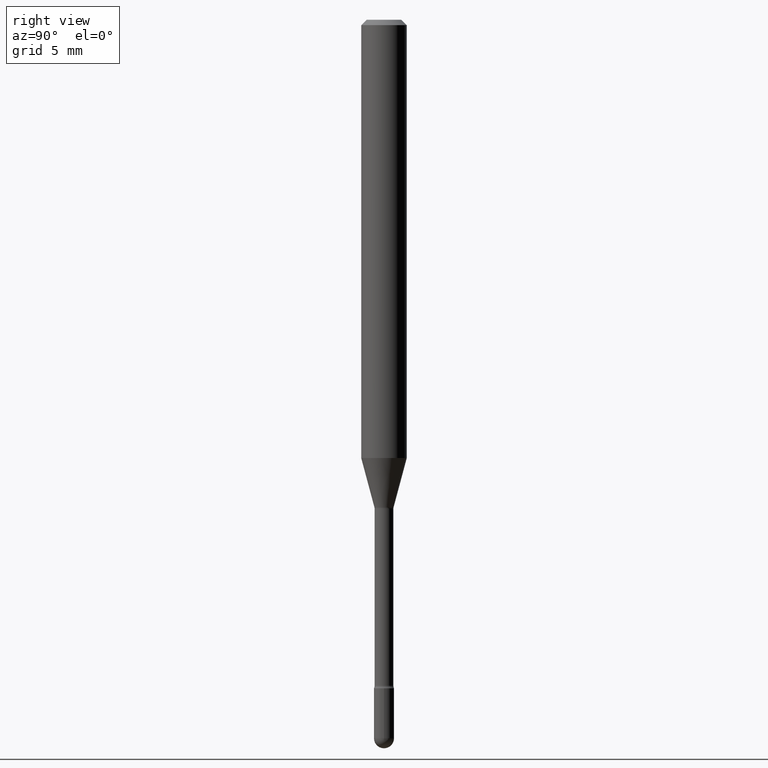
[diagram: clean part render]
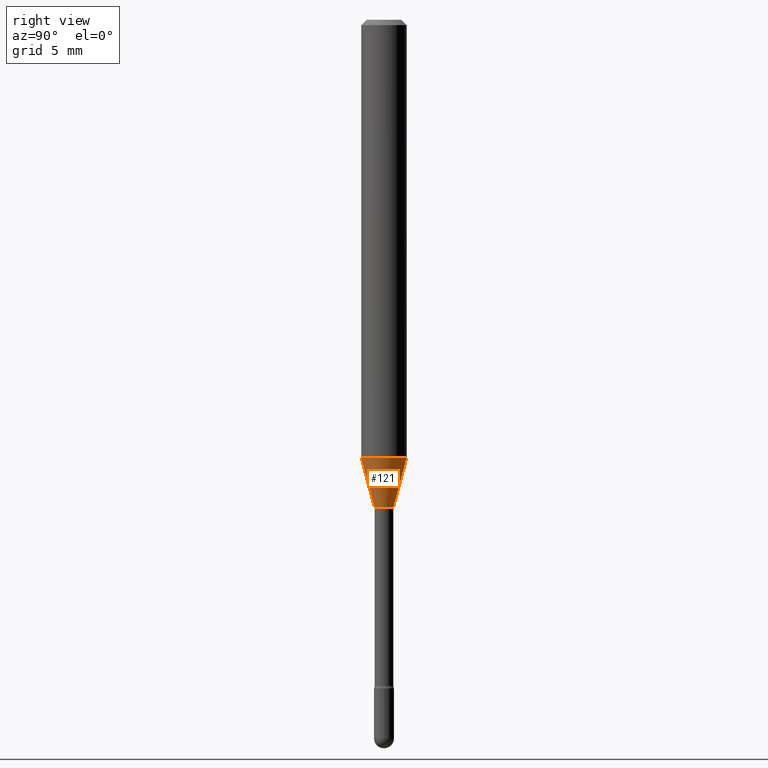
[diagram: same view with one face highlighted and labeled with its STEP entity id]
A machine part, right view. The second image highlights one B-rep face of the part: STEP entity #121.
In plain terms, the highlighted conical surface has half-angle 15 deg.
Its self-contained STEP definition (entity closure, byte-faithful):
#2 = AXIS2_PLACEMENT_3D ( 'NONE', #66, #29, #100 ) ;
#12 = AXIS2_PLACEMENT_3D ( 'NONE', #343, #539, #49 ) ;
#14 = CARTESIAN_POINT ( 'NONE',  ( -1.840786654676037546E-16, -0.02636111260566864622, -1.338092501787272903 ) ) ;
#16 = CARTESIAN_POINT ( 'NONE',  ( 4.440892098500918040E-16, 0.06249999999999577421, -1.203220337902601189 ) ) ;
#17 = DIRECTION ( 'NONE',  ( 1.839019923739600315E-15, 0.2588190451025249583, 0.9659258262890670910 ) ) ;
#26 = VERTEX_POINT ( 'NONE', #382 ) ;
#29 = DIRECTION ( 'NONE',  ( -2.445426097641585314E-29, 3.491542499908330296E-15, 1.000000000000000000 ) ) ;
#33 = DIRECTION ( 'NONE',  ( -2.445426097641585314E-29, 3.491542499908330296E-15, 1.000000000000000000 ) ) ;
#43 = CONICAL_SURFACE ( 'NONE', #482, 0.02636111260566397288, 0.2617993877991502960 ) ;
#46 = VERTEX_POINT ( 'NONE', #16 ) ;
#47 = EDGE_LOOP ( 'NONE', ( #550, #430, #381, #425 ) ) ;
#49 = DIRECTION ( 'NONE',  ( -6.982962677686265922E-15, -1.000000000000000000, 4.370956789862821150E-15 ) ) ;
#62 = CARTESIAN_POINT ( 'NONE',  ( -4.364351673553623336E-16, -0.06250000000000421885, -1.203220337902600745 ) ) ;
#66 = CARTESIAN_POINT ( 'NONE',  ( 3.272206324929117357E-29, -4.672006838798926672E-15, -1.338092501787272903 ) ) ;
#100 = DIRECTION ( 'NONE',  ( -6.982962677686265922E-15, -1.000000000000000000, 0.000000000000000000 ) ) ;
#121 = ADVANCED_FACE ( 'NONE', ( #414 ), #43, .T. ) ;
#132 = CARTESIAN_POINT ( 'NONE',  ( -1.840786654676037546E-16, -0.02636111260566864622, -1.338092501787272903 ) ) ;
#137 = VERTEX_POINT ( 'NONE', #62 ) ;
#138 = EDGE_CURVE ( 'NONE', #456, #26, #533, .T. ) ;
#182 = VECTOR ( 'NONE', #17, 39.37007874015748143 ) ;
#190 = EDGE_CURVE ( 'NONE', #26, #46, #237, .T. ) ;
#199 = DIRECTION ( 'NONE',  ( -6.982962677686265922E-15, -1.000000000000000000, 0.000000000000000000 ) ) ;
#237 = LINE ( 'NONE', #403, #182 ) ;
#258 = VECTOR ( 'NONE', #434, 39.37007874015748143 ) ;
#307 = EDGE_CURVE ( 'NONE', #456, #137, #339, .T. ) ;
#339 = LINE ( 'NONE', #132, #258 ) ;
#343 = CARTESIAN_POINT ( 'NONE',  ( 2.942386415520147036E-29, -4.201094946540992932E-15, -1.203220337902600967 ) ) ;
#381 = ORIENTED_EDGE ( 'NONE', *, *, #517, .F. ) ;
#382 = CARTESIAN_POINT ( 'NONE',  ( 3.156980902676051676E-16, 0.02636111260565929953, -1.338092501787272903 ) ) ;
#403 = CARTESIAN_POINT ( 'NONE',  ( 1.873069706851181121E-16, 0.02636111260565929953, -1.338092501787272903 ) ) ;
#414 = FACE_OUTER_BOUND ( 'NONE', #47, .T. ) ;
#415 = CARTESIAN_POINT ( 'NONE',  ( 3.272206324929117357E-29, -4.672006838798926672E-15, -1.338092501787272903 ) ) ;
#425 = ORIENTED_EDGE ( 'NONE', *, *, #307, .F. ) ;
#426 = CIRCLE ( 'NONE', #12, 0.06250000000000000000 ) ;
#430 = ORIENTED_EDGE ( 'NONE', *, *, #190, .T. ) ;
#434 = DIRECTION ( 'NONE',  ( -1.807323732225330139E-15, -0.2588190451025181860, 0.9659258262890689783 ) ) ;
#456 = VERTEX_POINT ( 'NONE', #14 ) ;
#482 = AXIS2_PLACEMENT_3D ( 'NONE', #415, #33, #199 ) ;
#517 = EDGE_CURVE ( 'NONE', #137, #46, #426, .T. ) ;
#533 = CIRCLE ( 'NONE', #2, 0.02636111260566397288 ) ;
#539 = DIRECTION ( 'NONE',  ( -2.445426097641585314E-29, 3.491542499908330296E-15, 1.000000000000000000 ) ) ;
#550 = ORIENTED_EDGE ( 'NONE', *, *, #138, .T. ) ;